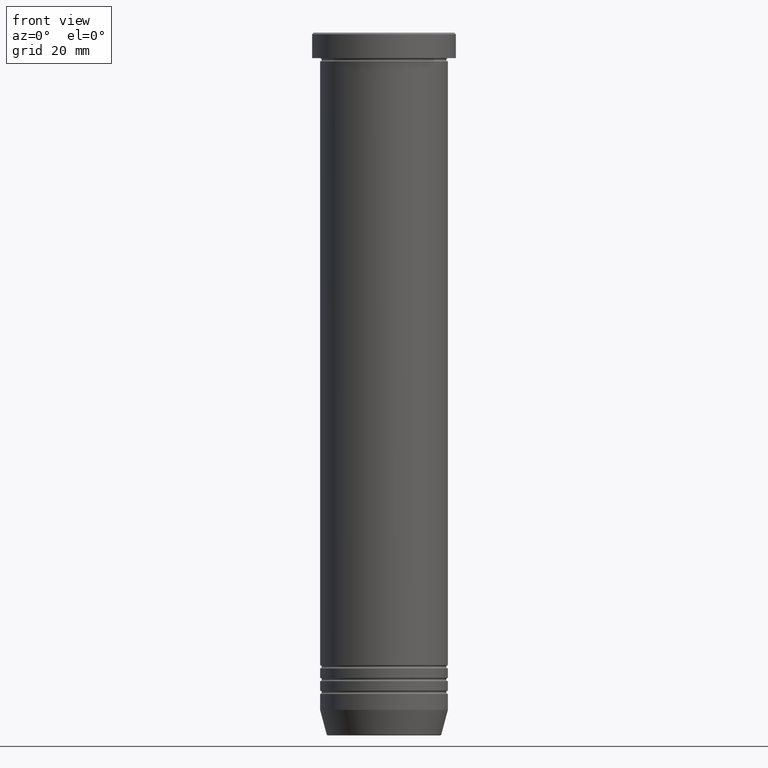
[diagram: clean part render]
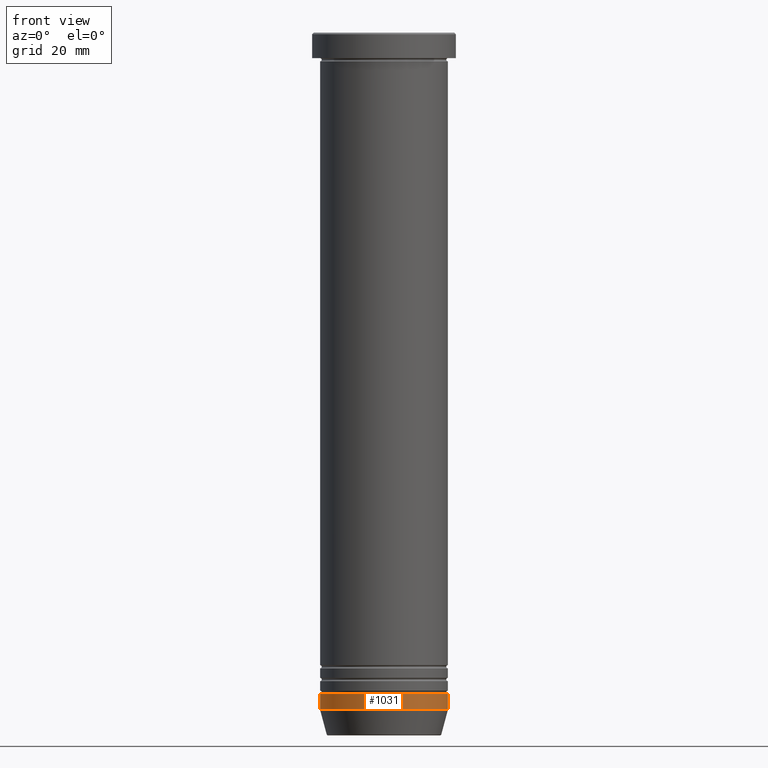
[diagram: same view with one face highlighted and labeled with its STEP entity id]
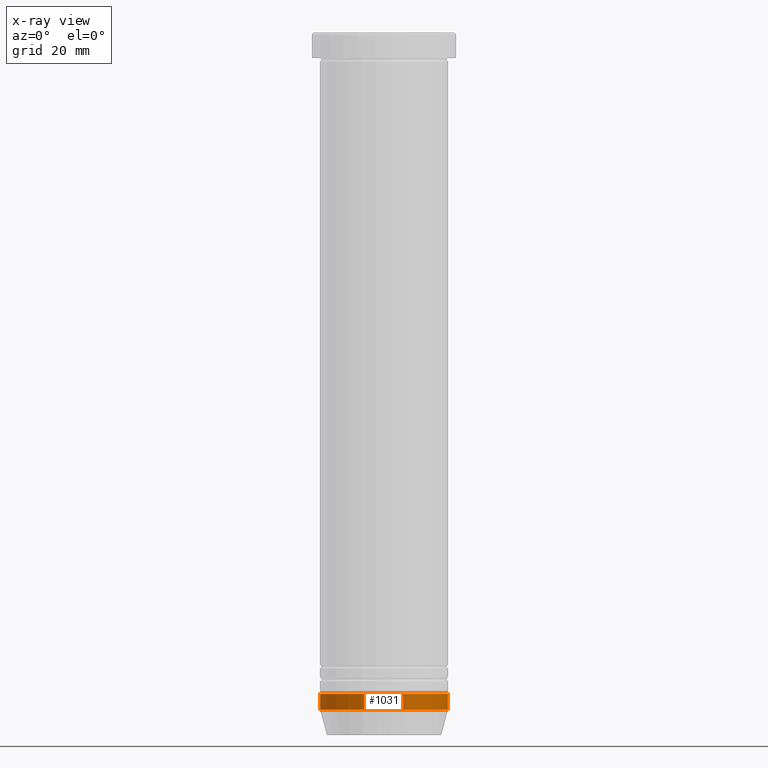
[diagram: x-ray of the same camera — body ghosted, the highlighted face saturated]
A machine part, front view. The second image highlights one B-rep face of the part: STEP entity #1031.
The next image is the same camera in x-ray: the body ghosted, the highlighted face saturated — about 0% of this face is hidden behind the body in this view.
In plain terms, the highlighted cylindrical surface (partial cylindrical patch) has radius 20 mm, axis along (-0, -0, 1).
Its self-contained STEP definition (entity closure, byte-faithful):
#46 = CARTESIAN_POINT ( 'NONE',  ( 0.000000000000000000, 0.000000000000000000, -212.0000000000000000 ) ) ;
#68 = ORIENTED_EDGE ( 'NONE', *, *, #785, .F. ) ;
#72 = DIRECTION ( 'NONE',  ( -0.000000000000000000, -0.000000000000000000, 1.000000000000000000 ) ) ;
#103 = AXIS2_PLACEMENT_3D ( 'NONE', #1057, #643, #373 ) ;
#104 = ORIENTED_EDGE ( 'NONE', *, *, #949, .T. ) ;
#166 = ORIENTED_EDGE ( 'NONE', *, *, #937, .F. ) ;
#185 = VERTEX_POINT ( 'NONE', #190 ) ;
#190 = CARTESIAN_POINT ( 'NONE',  ( -20.00000000000000000, 2.449293598294706513E-15, -207.0000000000000000 ) ) ;
#202 = DIRECTION ( 'NONE',  ( 1.000000000000000000, 0.000000000000000000, 0.000000000000000000 ) ) ;
#225 = CARTESIAN_POINT ( 'NONE',  ( 20.00000000000000000, 0.000000000000000000, -207.0000000000000000 ) ) ;
#241 = ORIENTED_EDGE ( 'NONE', *, *, #593, .T. ) ;
#277 = DIRECTION ( 'NONE',  ( -0.000000000000000000, -0.000000000000000000, 1.000000000000000000 ) ) ;
#301 = CARTESIAN_POINT ( 'NONE',  ( 20.00000000000000000, 0.000000000000000000, 0.000000000000000000 ) ) ;
#320 = VERTEX_POINT ( 'NONE', #225 ) ;
#373 = DIRECTION ( 'NONE',  ( 1.000000000000000000, 0.000000000000000000, 0.000000000000000000 ) ) ;
#445 = EDGE_LOOP ( 'NONE', ( #166, #241, #104, #68 ) ) ;
#449 = LINE ( 'NONE', #859, #892 ) ;
#490 = CARTESIAN_POINT ( 'NONE',  ( 20.00000000000000000, 0.000000000000000000, -212.0000000000000000 ) ) ;
#574 = CIRCLE ( 'NONE', #875, 20.00000000000000000 ) ;
#593 = EDGE_CURVE ( 'NONE', #820, #869, #1034, .T. ) ;
#622 = FACE_OUTER_BOUND ( 'NONE', #445, .T. ) ;
#634 = CARTESIAN_POINT ( 'NONE',  ( 0.000000000000000000, 0.000000000000000000, -207.0000000000000000 ) ) ;
#643 = DIRECTION ( 'NONE',  ( -0.000000000000000000, -0.000000000000000000, 1.000000000000000000 ) ) ;
#723 = DIRECTION ( 'NONE',  ( 1.000000000000000000, 0.000000000000000000, 0.000000000000000000 ) ) ;
#785 = EDGE_CURVE ( 'NONE', #185, #320, #574, .T. ) ;
#803 = DIRECTION ( 'NONE',  ( -0.000000000000000000, -0.000000000000000000, 1.000000000000000000 ) ) ;
#811 = LINE ( 'NONE', #301, #943 ) ;
#820 = VERTEX_POINT ( 'NONE', #1007 ) ;
#859 = CARTESIAN_POINT ( 'NONE',  ( -20.00000000000000000, 2.449293598294706513E-15, 0.000000000000000000 ) ) ;
#869 = VERTEX_POINT ( 'NONE', #490 ) ;
#875 = AXIS2_PLACEMENT_3D ( 'NONE', #634, #72, #202 ) ;
#879 = CYLINDRICAL_SURFACE ( 'NONE', #103, 20.00000000000000000 ) ;
#892 = VECTOR ( 'NONE', #277, 1000.000000000000000 ) ;
#937 = EDGE_CURVE ( 'NONE', #820, #185, #449, .T. ) ;
#943 = VECTOR ( 'NONE', #803, 1000.000000000000000 ) ;
#949 = EDGE_CURVE ( 'NONE', #869, #320, #811, .T. ) ;
#965 = DIRECTION ( 'NONE',  ( -0.000000000000000000, -0.000000000000000000, 1.000000000000000000 ) ) ;
#1007 = CARTESIAN_POINT ( 'NONE',  ( -20.00000000000000000, 2.449293598294706513E-15, -212.0000000000000000 ) ) ;
#1031 = ADVANCED_FACE ( 'NONE', ( #622 ), #879, .T. ) ;
#1034 = CIRCLE ( 'NONE', #1059, 20.00000000000000000 ) ;
#1057 = CARTESIAN_POINT ( 'NONE',  ( 0.000000000000000000, 0.000000000000000000, 0.000000000000000000 ) ) ;
#1059 = AXIS2_PLACEMENT_3D ( 'NONE', #46, #965, #723 ) ;